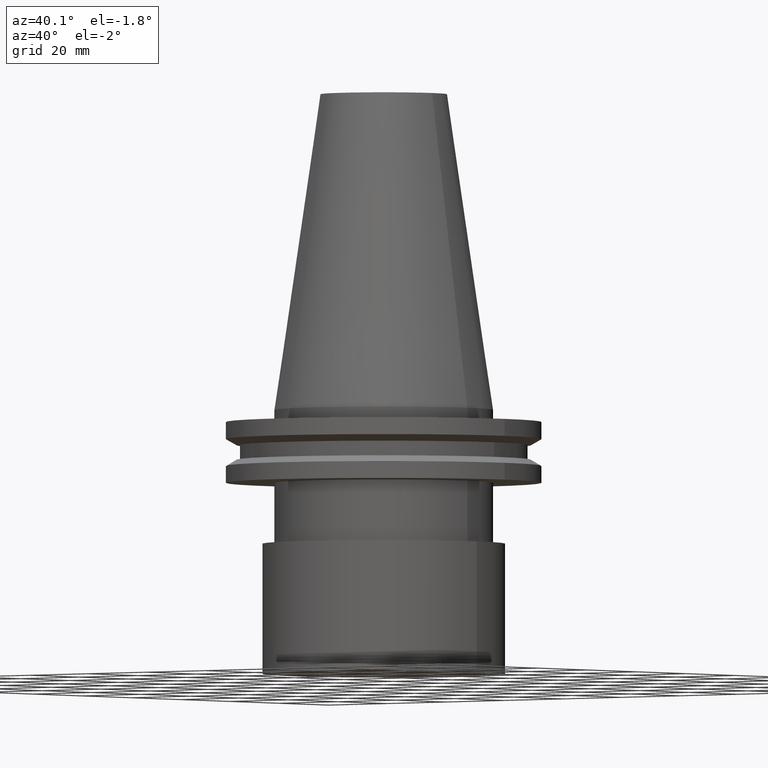
[diagram: clean part render]
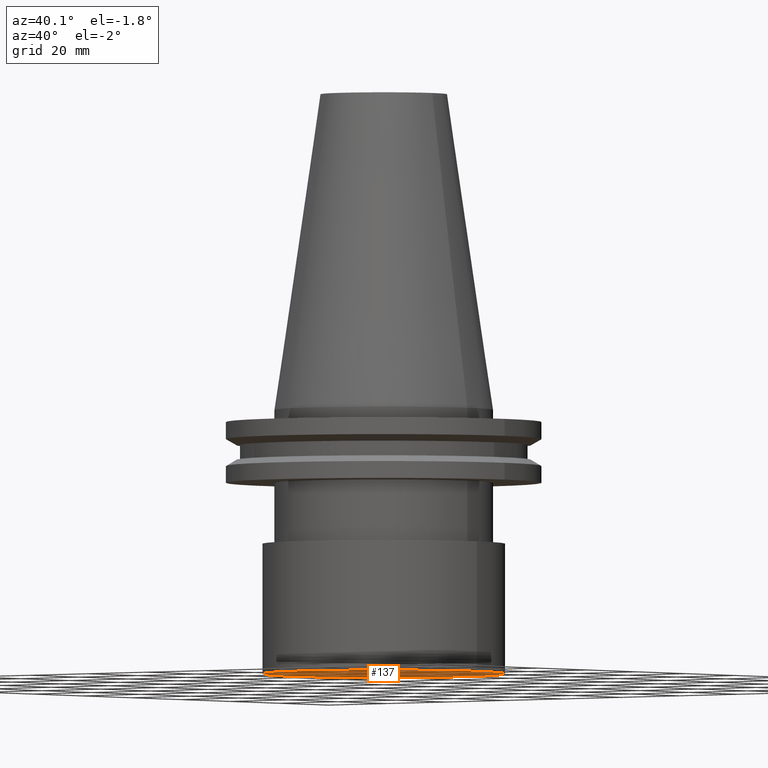
[diagram: same view with one face highlighted and labeled with its STEP entity id]
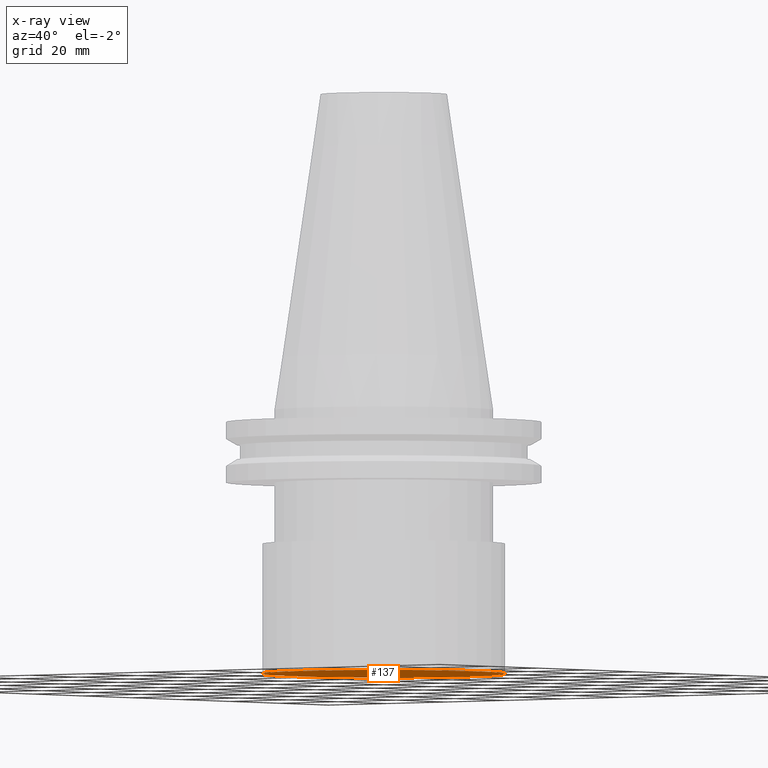
[diagram: x-ray of the same camera — body ghosted, the highlighted face saturated]
A machine part, auxiliary view. The second image highlights one B-rep face of the part: STEP entity #137.
The next image is the same camera in x-ray: the body ghosted, the highlighted face saturated — about 0% of this face is hidden behind the body in this view.
In plain terms, the highlighted planar face has unit normal (0, -0, 1).
Its self-contained STEP definition (entity closure, byte-faithful):
#26 = DIRECTION ( 'NONE',  ( -0.000000000000000000, -0.000000000000000000, 1.000000000000000000 ) ) ;
#51 = EDGE_LOOP ( 'NONE', ( #351 ) ) ;
#53 = CARTESIAN_POINT ( 'NONE',  ( 0.000000000000000000, 0.000000000000000000, -68.98999999999999488 ) ) ;
#121 = EDGE_CURVE ( 'NONE', #197, #197, #288, .T. ) ;
#126 = DIRECTION ( 'NONE',  ( 1.000000000000000000, 0.000000000000000000, 0.000000000000000000 ) ) ;
#137 = ADVANCED_FACE ( 'NONE', ( #309 ), #367, .F. ) ;
#158 = DIRECTION ( 'NONE',  ( 0.000000000000000000, -0.000000000000000000, 1.000000000000000000 ) ) ;
#188 = AXIS2_PLACEMENT_3D ( 'NONE', #313, #158, #126 ) ;
#197 = VERTEX_POINT ( 'NONE', #228 ) ;
#228 = CARTESIAN_POINT ( 'NONE',  ( 31.75000000000000000, 0.000000000000000000, -68.98999999999999488 ) ) ;
#250 = AXIS2_PLACEMENT_3D ( 'NONE', #53, #26, #263 ) ;
#263 = DIRECTION ( 'NONE',  ( 1.000000000000000000, 0.000000000000000000, 0.000000000000000000 ) ) ;
#288 = CIRCLE ( 'NONE', #250, 31.75000000000000000 ) ;
#309 = FACE_OUTER_BOUND ( 'NONE', #51, .T. ) ;
#313 = CARTESIAN_POINT ( 'NONE',  ( 0.000000000000000000, 31.75000000000000000, -68.98999999999999488 ) ) ;
#351 = ORIENTED_EDGE ( 'NONE', *, *, #121, .F. ) ;
#367 = PLANE ( 'NONE',  #188 ) ;